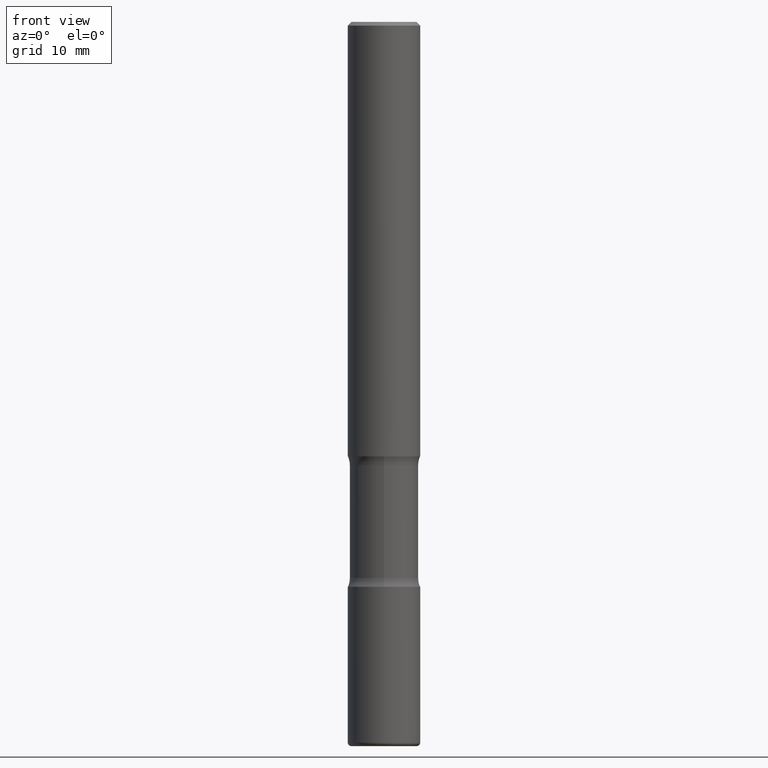
[diagram: clean part render]
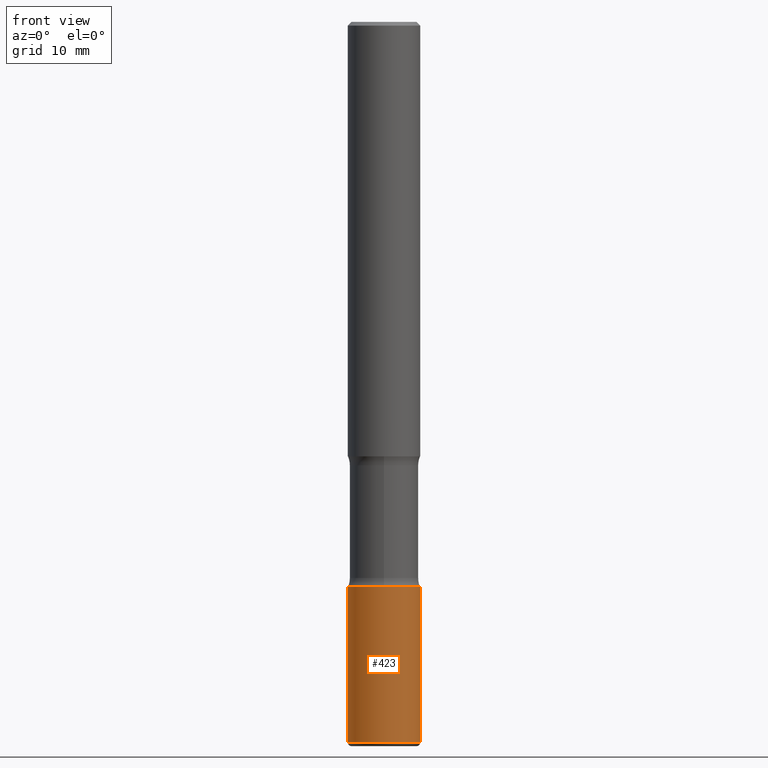
[diagram: same view with one face highlighted and labeled with its STEP entity id]
A machine part, front view. The second image highlights one B-rep face of the part: STEP entity #423.
In plain terms, the highlighted cylindrical surface (edge-blend (fillet) strip) has radius 5 mm, axis along (-0, 0, 1).
Its self-contained STEP definition (entity closure, byte-faithful):
#7 = DIRECTION ( 'NONE',  ( -2.445468806185136877E-29, 3.491481338843145188E-15, 1.000000000000000000 ) ) ;
#34 = CYLINDRICAL_SURFACE ( 'NONE', #406, 0.1968500000000001360 ) ;
#43 = ORIENTED_EDGE ( 'NONE', *, *, #452, .F. ) ;
#46 = LINE ( 'NONE', #214, #151 ) ;
#61 = AXIS2_PLACEMENT_3D ( 'NONE', #251, #244, #90 ) ;
#69 = VERTEX_POINT ( 'NONE', #515 ) ;
#90 = DIRECTION ( 'NONE',  ( 1.000000000000000000, -6.982962677686265133E-15, 0.000000000000000000 ) ) ;
#127 = LINE ( 'NONE', #379, #441 ) ;
#130 = VERTEX_POINT ( 'NONE', #523 ) ;
#133 = DIRECTION ( 'NONE',  ( 1.000000000000000000, -6.982962677686266711E-15, 4.876176775795935793E-29 ) ) ;
#134 = CIRCLE ( 'NONE', #61, 0.1968500000000001082 ) ;
#148 = DIRECTION ( 'NONE',  ( -2.445468806185136597E-29, 3.491481338843145583E-15, 1.000000000000000000 ) ) ;
#151 = VECTOR ( 'NONE', #7, 39.37007874015748143 ) ;
#169 = CARTESIAN_POINT ( 'NONE',  ( 7.509790156913936305E-29, -1.072199004345341739E-14, -3.070900000000000407 ) ) ;
#171 = EDGE_CURVE ( 'NONE', #475, #69, #46, .T. ) ;
#185 = DIRECTION ( 'NONE',  ( 1.000000000000000000, -6.982962677686272233E-15, 0.000000000000000000 ) ) ;
#194 = AXIS2_PLACEMENT_3D ( 'NONE', #169, #148, #185 ) ;
#200 = CARTESIAN_POINT ( 'NONE',  ( 0.000000000000000000, 0.000000000000000000, 0.000000000000000000 ) ) ;
#214 = CARTESIAN_POINT ( 'NONE',  ( -0.1968500000000001360, 1.398703375343758182E-15, -9.682923725166790684E-30 ) ) ;
#235 = ORIENTED_EDGE ( 'NONE', *, *, #171, .F. ) ;
#242 = EDGE_CURVE ( 'NONE', #476, #130, #127, .T. ) ;
#244 = DIRECTION ( 'NONE',  ( -2.445468806185136597E-29, 3.491481338843145583E-15, 1.000000000000000000 ) ) ;
#247 = CARTESIAN_POINT ( 'NONE',  ( 0.1968500000000000805, -1.505177605175279857E-14, -3.917300000000000448 ) ) ;
#251 = CARTESIAN_POINT ( 'NONE',  ( 9.579634954469036932E-29, -1.367717984865025539E-14, -3.917300000000000448 ) ) ;
#301 = ORIENTED_EDGE ( 'NONE', *, *, #394, .T. ) ;
#379 = CARTESIAN_POINT ( 'NONE',  ( 0.1968500000000001360, -1.374596203102542594E-15, 9.598753983154306463E-30 ) ) ;
#394 = EDGE_CURVE ( 'NONE', #475, #476, #134, .T. ) ;
#406 = AXIS2_PLACEMENT_3D ( 'NONE', #200, #463, #133 ) ;
#410 = FACE_OUTER_BOUND ( 'NONE', #496, .T. ) ;
#423 = ADVANCED_FACE ( 'NONE', ( #410 ), #34, .T. ) ;
#424 = DIRECTION ( 'NONE',  ( -2.445468806185136877E-29, 3.491481338843145188E-15, 1.000000000000000000 ) ) ;
#441 = VECTOR ( 'NONE', #424, 39.37007874015748143 ) ;
#442 = CIRCLE ( 'NONE', #194, 0.1968500000000001915 ) ;
#452 = EDGE_CURVE ( 'NONE', #69, #130, #442, .T. ) ;
#463 = DIRECTION ( 'NONE',  ( -2.445468806185136597E-29, 3.491481338843145583E-15, 1.000000000000000000 ) ) ;
#475 = VERTEX_POINT ( 'NONE', #480 ) ;
#476 = VERTEX_POINT ( 'NONE', #247 ) ;
#480 = CARTESIAN_POINT ( 'NONE',  ( -0.1968500000000000805, -1.227847647330649996E-14, -3.917300000000000448 ) ) ;
#496 = EDGE_LOOP ( 'NONE', ( #235, #301, #509, #43 ) ) ;
#509 = ORIENTED_EDGE ( 'NONE', *, *, #242, .T. ) ;
#515 = CARTESIAN_POINT ( 'NONE',  ( -0.1968500000000001915, -1.080088157070807781E-14, -3.070900000000000407 ) ) ;
#523 = CARTESIAN_POINT ( 'NONE',  ( 0.1968500000000001915, -1.209658624655596058E-14, -3.070900000000000407 ) ) ;